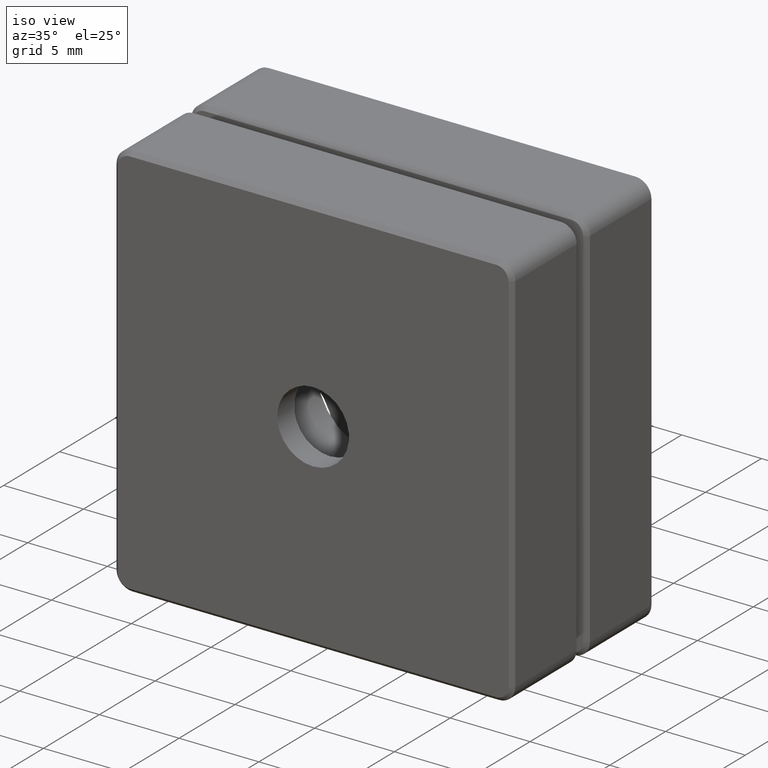
[diagram: clean part render]
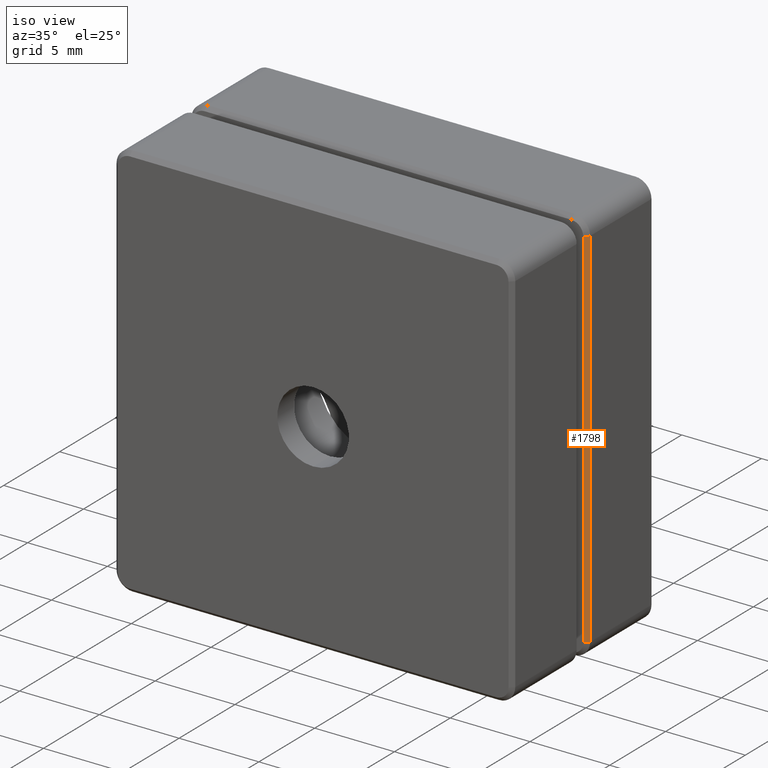
[diagram: same view with one face highlighted and labeled with its STEP entity id]
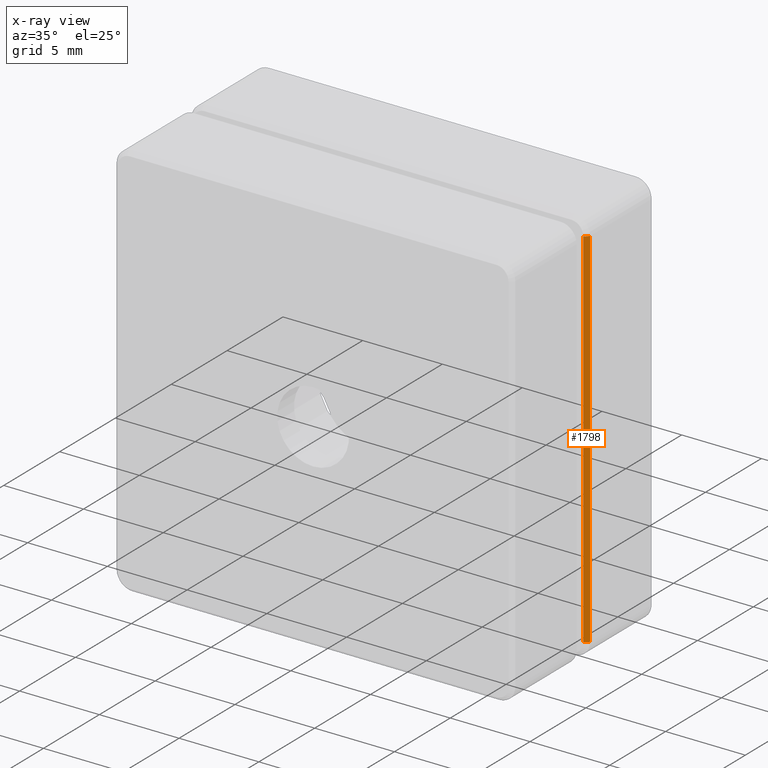
[diagram: x-ray of the same camera — body ghosted, the highlighted face saturated]
A machine part, iso view. The second image highlights one B-rep face of the part: STEP entity #1798.
The next image is the same camera in x-ray: the body ghosted, the highlighted face saturated — about 0% of this face is hidden behind the body in this view.
In plain terms, the highlighted planar face has unit normal (0.7071, -0.7071, -0).
Its self-contained STEP definition (entity closure, byte-faithful):
#126 = DIRECTION ( 'NONE',  ( -2.672558355176768430E-16, -7.904105642296520862E-20, -1.000000000000000000 ) ) ;
#141 = DIRECTION ( 'NONE',  ( -2.672558355176768430E-16, -7.904105642296520862E-20, -1.000000000000000000 ) ) ;
#182 = DIRECTION ( 'NONE',  ( 0.7071067811865541231, 0.7071067811865409114, -1.031698727389472071E-16 ) ) ;
#205 = VERTEX_POINT ( 'NONE', #2698 ) ;
#219 = EDGE_CURVE ( 'NONE', #2123, #2145, #726, .T. ) ;
#297 = EDGE_CURVE ( 'NONE', #2145, #205, #469, .T. ) ;
#461 = FACE_OUTER_BOUND ( 'NONE', #530, .T. ) ;
#469 = LINE ( 'NONE', #3099, #2797 ) ;
#530 = EDGE_LOOP ( 'NONE', ( #2977, #3325, #1075, #2252 ) ) ;
#584 = DIRECTION ( 'NONE',  ( 0.7071067811865516806, 0.7071067811865434649, -1.031698727389465292E-16 ) ) ;
#726 = LINE ( 'NONE', #2172, #1096 ) ;
#747 = CARTESIAN_POINT ( 'NONE',  ( 12.25000000000000355, 3.699958608817714101, -11.50000000000000355 ) ) ;
#780 = LINE ( 'NONE', #3014, #2191 ) ;
#1014 = VERTEX_POINT ( 'NONE', #2212 ) ;
#1075 = ORIENTED_EDGE ( 'NONE', *, *, #219, .F. ) ;
#1096 = VECTOR ( 'NONE', #584, 999.9999999999998863 ) ;
#1483 = PLANE ( 'NONE',  #1599 ) ;
#1599 = AXIS2_PLACEMENT_3D ( 'NONE', #2281, #1772, #126 ) ;
#1772 = DIRECTION ( 'NONE',  ( 0.7071067811865516806, -0.7071067811865433539, -1.889225231392381362E-16 ) ) ;
#1798 = ADVANCED_FACE ( 'NONE', ( #461 ), #1483, .T. ) ;
#1912 = CARTESIAN_POINT ( 'NONE',  ( 12.50000000000000888, 3.949958608817682126, 11.49999999999999822 ) ) ;
#2123 = VERTEX_POINT ( 'NONE', #2715 ) ;
#2145 = VERTEX_POINT ( 'NONE', #1912 ) ;
#2172 = CARTESIAN_POINT ( 'NONE',  ( 12.25000000000000888, 3.699958608817714101, 11.49999999999999822 ) ) ;
#2191 = VECTOR ( 'NONE', #2217, 1000.000000000000000 ) ;
#2212 = CARTESIAN_POINT ( 'NONE',  ( 12.25000000000000355, 3.699958608817714101, -11.50000000000000355 ) ) ;
#2217 = DIRECTION ( 'NONE',  ( 2.672558355176768430E-16, 7.904105642296520862E-20, 1.000000000000000000 ) ) ;
#2252 = ORIENTED_EDGE ( 'NONE', *, *, #3218, .F. ) ;
#2281 = CARTESIAN_POINT ( 'NONE',  ( 12.25000000000000711, 3.699958608817714101, -8.609247481489113384E-17 ) ) ;
#2316 = VECTOR ( 'NONE', #182, 1000.000000000000000 ) ;
#2698 = CARTESIAN_POINT ( 'NONE',  ( 12.50000000000000533, 3.949958608817682126, -11.50000000000000355 ) ) ;
#2700 = LINE ( 'NONE', #747, #2316 ) ;
#2715 = CARTESIAN_POINT ( 'NONE',  ( 12.25000000000000888, 3.699958608817714101, 11.49999999999999822 ) ) ;
#2797 = VECTOR ( 'NONE', #141, 1000.000000000000000 ) ;
#2977 = ORIENTED_EDGE ( 'NONE', *, *, #3024, .T. ) ;
#3014 = CARTESIAN_POINT ( 'NONE',  ( 12.25000000000000888, 3.699958608817714101, 11.49999999999999822 ) ) ;
#3024 = EDGE_CURVE ( 'NONE', #1014, #205, #2700, .T. ) ;
#3099 = CARTESIAN_POINT ( 'NONE',  ( 12.50000000000000533, 3.949958608817682126, -11.50000000000000355 ) ) ;
#3218 = EDGE_CURVE ( 'NONE', #1014, #2123, #780, .T. ) ;
#3325 = ORIENTED_EDGE ( 'NONE', *, *, #297, .F. ) ;